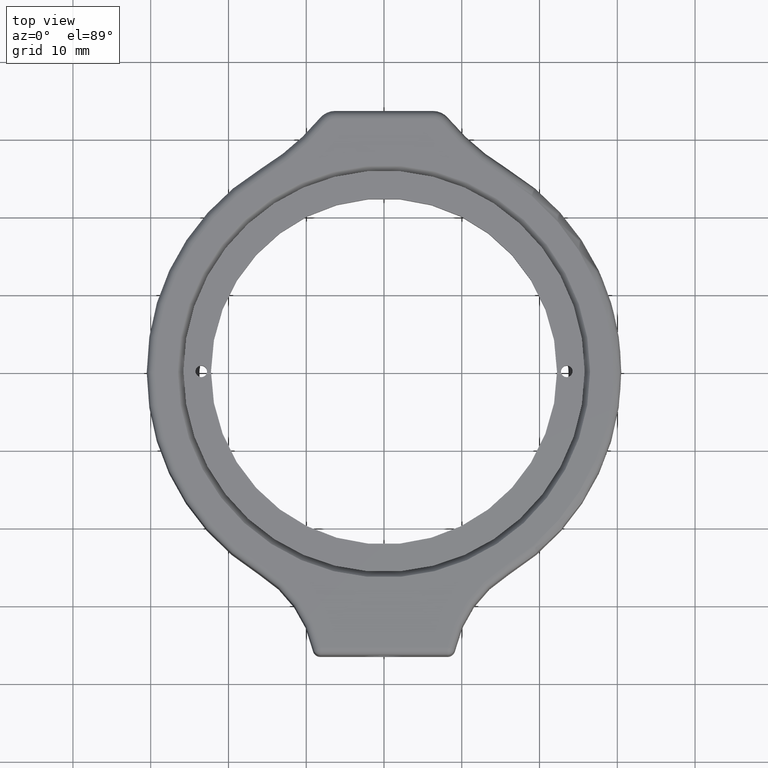
[diagram: clean part render]
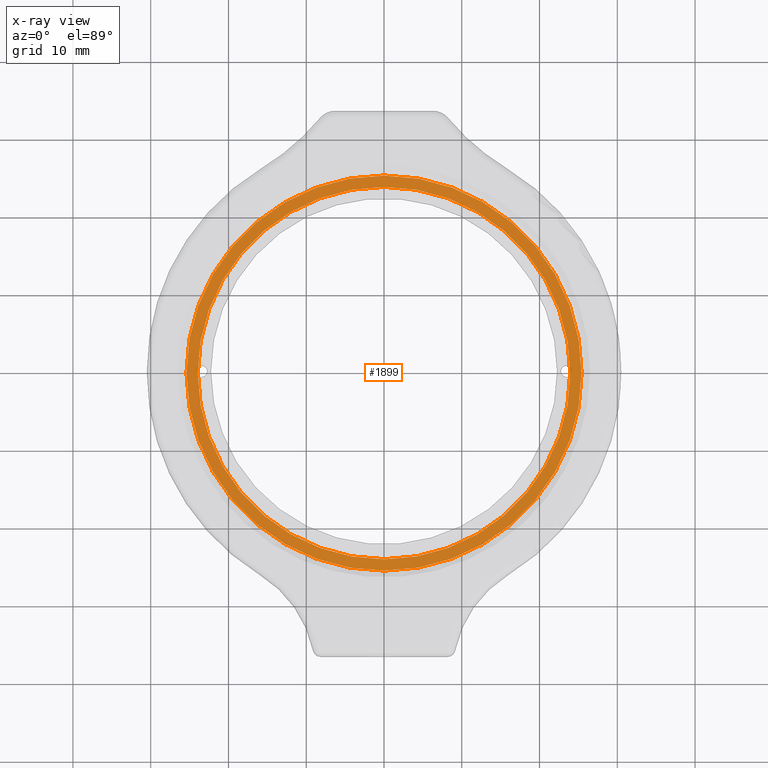
[diagram: x-ray — body ghosted, one internal face saturated and labeled with its STEP entity id]
A machine part, top view, then the same camera in x-ray: the body is ghosted and one INTERNAL B-rep face — a face not visible from any outside direction — is saturated and labeled: STEP entity #1899.
In plain terms, the highlighted planar face has unit normal (0, 0, -1).
Its self-contained STEP definition (entity closure, byte-faithful):
#41 = DIRECTION ( 'NONE',  ( -1.000000000000000000, 7.771561172376096800E-016, 0.0000000000000000000 ) ) ;
#49 = CARTESIAN_POINT ( 'NONE',  ( 0.0000000000000000000, 0.0000000000000000000, -14.00000000000000000 ) ) ;
#92 = VERTEX_POINT ( 'NONE', #968 ) ;
#130 = EDGE_LOOP ( 'NONE', ( #941, #1632 ) ) ;
#211 = DIRECTION ( 'NONE',  ( -1.000000000000000000, 7.771561172376097800E-016, 0.0000000000000000000 ) ) ;
#302 = EDGE_CURVE ( 'NONE', #479, #559, #1997, .T. ) ;
#335 = CARTESIAN_POINT ( 'NONE',  ( 0.0000000000000000000, 0.0000000000000000000, -14.00000000000000000 ) ) ;
#432 = EDGE_CURVE ( 'NONE', #688, #92, #1665, .T. ) ;
#479 = VERTEX_POINT ( 'NONE', #546 ) ;
#495 = AXIS2_PLACEMENT_3D ( 'NONE', #1091, #725, #211 ) ;
#507 = AXIS2_PLACEMENT_3D ( 'NONE', #1249, #1953, #41 ) ;
#518 = CARTESIAN_POINT ( 'NONE',  ( -25.39999999999999500, 1.973976537783528100E-014, -14.00000000000000000 ) ) ;
#546 = CARTESIAN_POINT ( 'NONE',  ( 23.94999999999999600, -1.567985992388283600E-014, -14.00000000000000000 ) ) ;
#559 = VERTEX_POINT ( 'NONE', #1278 ) ;
#608 = FACE_OUTER_BOUND ( 'NONE', #1628, .T. ) ;
#688 = VERTEX_POINT ( 'NONE', #518 ) ;
#712 = DIRECTION ( 'NONE',  ( -0.0000000000000000000, -0.0000000000000000000, 1.000000000000000000 ) ) ;
#725 = DIRECTION ( 'NONE',  ( 0.0000000000000000000, 0.0000000000000000000, -1.000000000000000000 ) ) ;
#813 = EDGE_CURVE ( 'NONE', #559, #479, #1926, .T. ) ;
#832 = AXIS2_PLACEMENT_3D ( 'NONE', #49, #712, #1607 ) ;
#941 = ORIENTED_EDGE ( 'NONE', *, *, #813, .T. ) ;
#962 = ORIENTED_EDGE ( 'NONE', *, *, #432, .T. ) ;
#968 = CARTESIAN_POINT ( 'NONE',  ( 25.39999999999999500, -1.666189707986715000E-014, -14.00000000000000000 ) ) ;
#1080 = FACE_BOUND ( 'NONE', #130, .T. ) ;
#1091 = CARTESIAN_POINT ( 'NONE',  ( 0.0000000000000000000, 0.0000000000000000000, -14.00000000000000000 ) ) ;
#1206 = DIRECTION ( 'NONE',  ( -1.000000000000000000, 7.771561172376097800E-016, 0.0000000000000000000 ) ) ;
#1249 = CARTESIAN_POINT ( 'NONE',  ( 0.0000000000000000000, 0.0000000000000000000, -14.00000000000000000 ) ) ;
#1278 = CARTESIAN_POINT ( 'NONE',  ( -23.94999999999999600, 1.861288900784075000E-014, -14.00000000000000000 ) ) ;
#1287 = PLANE ( 'NONE',  #1996 ) ;
#1421 = CIRCLE ( 'NONE', #832, 25.39999999999999500 ) ;
#1438 = ORIENTED_EDGE ( 'NONE', *, *, #1736, .T. ) ;
#1470 = CARTESIAN_POINT ( 'NONE',  ( 0.0000000000000000000, 0.0000000000000000000, -14.00000000000000000 ) ) ;
#1607 = DIRECTION ( 'NONE',  ( -1.000000000000000000, 7.771561172376096800E-016, 0.0000000000000000000 ) ) ;
#1626 = DIRECTION ( 'NONE',  ( 0.0000000000000000000, 0.0000000000000000000, -1.000000000000000000 ) ) ;
#1628 = EDGE_LOOP ( 'NONE', ( #962, #1438 ) ) ;
#1632 = ORIENTED_EDGE ( 'NONE', *, *, #302, .T. ) ;
#1665 = CIRCLE ( 'NONE', #507, 25.39999999999999500 ) ;
#1736 = EDGE_CURVE ( 'NONE', #92, #688, #1421, .T. ) ;
#1751 = AXIS2_PLACEMENT_3D ( 'NONE', #335, #2243, #1206 ) ;
#1899 = ADVANCED_FACE ( 'NONE', ( #608, #1080 ), #1287, .F. ) ;
#1926 = CIRCLE ( 'NONE', #495, 23.94999999999999600 ) ;
#1953 = DIRECTION ( 'NONE',  ( -0.0000000000000000000, -0.0000000000000000000, 1.000000000000000000 ) ) ;
#1989 = DIRECTION ( 'NONE',  ( -1.000000000000000000, 7.771561172376096800E-016, 0.0000000000000000000 ) ) ;
#1996 = AXIS2_PLACEMENT_3D ( 'NONE', #1470, #1626, #1989 ) ;
#1997 = CIRCLE ( 'NONE', #1751, 23.94999999999999600 ) ;
#2243 = DIRECTION ( 'NONE',  ( 0.0000000000000000000, 0.0000000000000000000, -1.000000000000000000 ) ) ;